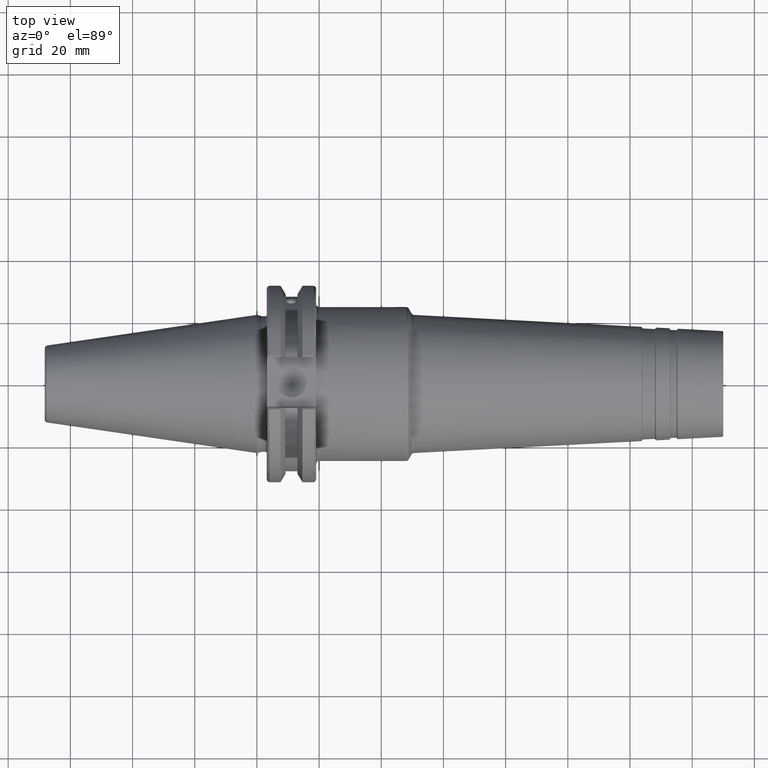
[diagram: clean part render]
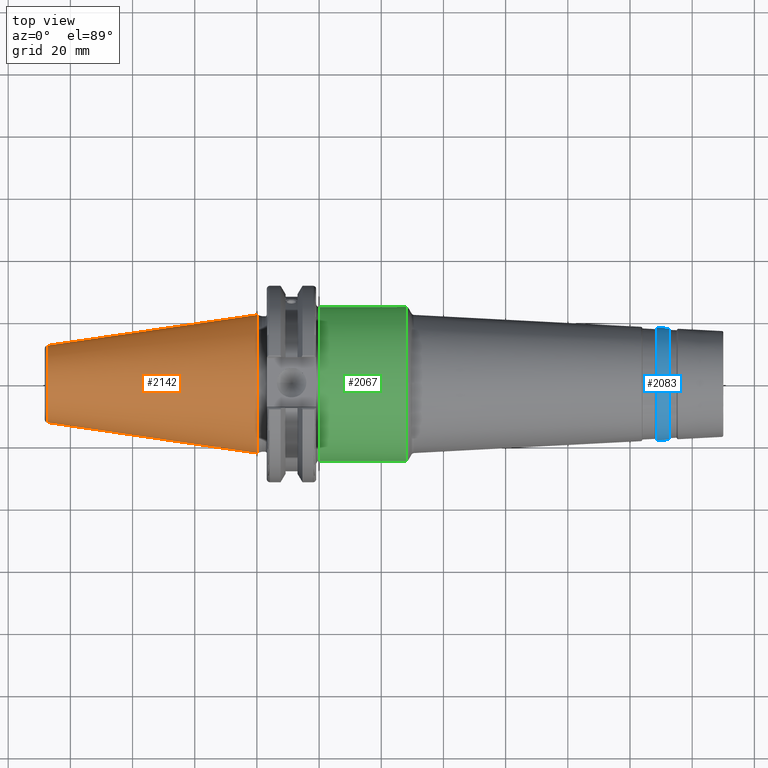
[diagram: same view with three faces highlighted in distinct colors, each labeled with its STEP entity id]
A machine part, top view with three faces highlighted in distinct colors.
Their STEP definitions:

[orange] entity #2142 — the highlighted conical surface has half-angle 8.297 deg.
#119=CONICAL_SURFACE('',#2442,17.2484375,0.144812498238939);
#253=FACE_OUTER_BOUND('',#372,.T.);
#372=EDGE_LOOP('',(#1894,#1895,#1896,#1897,#1898,#1899,#1900));
#482=LINE('',#4138,#581);
#581=VECTOR('',#3081,17.2484375);
#747=CIRCLE('',#2433,12.3966635780937);
#748=CIRCLE('',#2434,12.3966635780937);
#752=CIRCLE('',#2438,12.3966635780937);
#755=CIRCLE('',#2443,22.225);
#756=CIRCLE('',#2444,22.225);
#990=VERTEX_POINT('',#4117);
#991=VERTEX_POINT('',#4118);
#992=VERTEX_POINT('',#4120);
#997=VERTEX_POINT('',#4134);
#998=VERTEX_POINT('',#4135);
#1308=EDGE_CURVE('',#990,#991,#747,.T.);
#1309=EDGE_CURVE('',#991,#992,#748,.T.);
#1313=EDGE_CURVE('',#992,#990,#752,.T.);
#1316=EDGE_CURVE('',#997,#998,#755,.T.);
#1317=EDGE_CURVE('',#998,#997,#756,.T.);
#1318=EDGE_CURVE('',#998,#991,#482,.T.);
#1894=ORIENTED_EDGE('',*,*,#1316,.F.);
#1895=ORIENTED_EDGE('',*,*,#1317,.F.);
#1896=ORIENTED_EDGE('',*,*,#1318,.T.);
#1897=ORIENTED_EDGE('',*,*,#1308,.F.);
#1898=ORIENTED_EDGE('',*,*,#1313,.F.);
#1899=ORIENTED_EDGE('',*,*,#1309,.F.);
#1900=ORIENTED_EDGE('',*,*,#1318,.F.);
#2142=ADVANCED_FACE('',(#253),#119,.T.);
#2433=AXIS2_PLACEMENT_3D('',#4119,#3057,#3058);
#2434=AXIS2_PLACEMENT_3D('',#4121,#3059,#3060);
#2438=AXIS2_PLACEMENT_3D('',#4127,#3067,#3068);
#2442=AXIS2_PLACEMENT_3D('',#4133,#3075,#3076);
#2443=AXIS2_PLACEMENT_3D('',#4136,#3077,#3078);
#2444=AXIS2_PLACEMENT_3D('',#4137,#3079,#3080);
#3057=DIRECTION('center_axis',(-1.,0.,0.));
#3058=DIRECTION('ref_axis',(0.,-1.,3.06161699786838E-17));
#3059=DIRECTION('center_axis',(-1.,0.,0.));
#3060=DIRECTION('ref_axis',(0.,-1.,3.06161699786838E-17));
#3067=DIRECTION('center_axis',(-1.,0.,0.));
#3068=DIRECTION('ref_axis',(0.,-1.,3.06161699786838E-17));
#3075=DIRECTION('center_axis',(1.,0.,0.));
#3076=DIRECTION('ref_axis',(0.,1.,0.));
#3077=DIRECTION('center_axis',(1.,0.,0.));
#3078=DIRECTION('ref_axis',(0.,0.,-1.));
#3079=DIRECTION('center_axis',(1.,0.,0.));
#3080=DIRECTION('ref_axis',(0.,0.,-1.));
#3081=DIRECTION('',(-0.989532981063282,0.144306893071729,1.76724974695192E-17));
#4117=CARTESIAN_POINT('',(-67.3943068930717,12.3966635780937,-3.79538359275475E-15));
#4118=CARTESIAN_POINT('',(-67.3943068930718,-12.3966635780937,-1.5181534371019E-15));
#4119=CARTESIAN_POINT('Origin',(-67.3943068930717,0.,-1.89769179637738E-15));
#4120=CARTESIAN_POINT('',(-67.3943068930717,-1.5181534371019E-15,12.3966635780937));
#4121=CARTESIAN_POINT('Origin',(-67.3943068930717,0.,-1.89769179637738E-15));
#4127=CARTESIAN_POINT('Origin',(-67.3943068930717,0.,-1.89769179637738E-15));
#4133=CARTESIAN_POINT('Origin',(-34.125,0.,0.));
#4134=CARTESIAN_POINT('',(0.,22.225,0.));
#4135=CARTESIAN_POINT('',(0.,-22.225,-2.72177751110499E-15));
#4136=CARTESIAN_POINT('Origin',(0.,0.,0.));
#4137=CARTESIAN_POINT('Origin',(0.,0.,0.));
#4138=CARTESIAN_POINT('',(-34.125,-17.2484375,-2.11232437746682E-15));

[blue] entity #2083 — the highlighted conical surface has half-angle 3 deg.
#111=CONICAL_SURFACE('',#2278,18.0202570867172,0.0523598775598298);
#194=FACE_OUTER_BOUND('',#303,.T.);
#303=EDGE_LOOP('',(#1501,#1502,#1503,#1504,#1505,#1506,#1507,#1508));
#414=LINE('',#3444,#513);
#513=VECTOR('',#2681,18.0202570867172);
#665=CIRCLE('',#2275,17.9166117566925);
#666=CIRCLE('',#2276,17.9166117566925);
#667=CIRCLE('',#2277,17.9166117566925);
#668=CIRCLE('',#2279,18.1239024167419);
#669=CIRCLE('',#2280,18.1239024167419);
#670=CIRCLE('',#2281,18.1239024167419);
#837=VERTEX_POINT('',#3435);
#838=VERTEX_POINT('',#3437);
#839=VERTEX_POINT('',#3439);
#840=VERTEX_POINT('',#3443);
#841=VERTEX_POINT('',#3445);
#842=VERTEX_POINT('',#3447);
#1097=EDGE_CURVE('',#837,#838,#665,.T.);
#1098=EDGE_CURVE('',#838,#839,#666,.T.);
#1099=EDGE_CURVE('',#839,#837,#667,.T.);
#1100=EDGE_CURVE('',#838,#840,#414,.T.);
#1101=EDGE_CURVE('',#841,#840,#668,.T.);
#1102=EDGE_CURVE('',#842,#841,#669,.T.);
#1103=EDGE_CURVE('',#840,#842,#670,.T.);
#1501=ORIENTED_EDGE('',*,*,#1099,.F.);
#1502=ORIENTED_EDGE('',*,*,#1098,.F.);
#1503=ORIENTED_EDGE('',*,*,#1100,.T.);
#1504=ORIENTED_EDGE('',*,*,#1101,.F.);
#1505=ORIENTED_EDGE('',*,*,#1102,.F.);
#1506=ORIENTED_EDGE('',*,*,#1103,.F.);
#1507=ORIENTED_EDGE('',*,*,#1100,.F.);
#1508=ORIENTED_EDGE('',*,*,#1097,.F.);
#2083=ADVANCED_FACE('',(#194),#111,.T.);
#2275=AXIS2_PLACEMENT_3D('',#3438,#2673,#2674);
#2276=AXIS2_PLACEMENT_3D('',#3440,#2675,#2676);
#2277=AXIS2_PLACEMENT_3D('',#3441,#2677,#2678);
#2278=AXIS2_PLACEMENT_3D('',#3442,#2679,#2680);
#2279=AXIS2_PLACEMENT_3D('',#3446,#2682,#2683);
#2280=AXIS2_PLACEMENT_3D('',#3448,#2684,#2685);
#2281=AXIS2_PLACEMENT_3D('',#3449,#2686,#2687);
#2673=DIRECTION('center_axis',(1.,0.,0.));
#2674=DIRECTION('ref_axis',(0.,-1.,3.06161699786838E-17));
#2675=DIRECTION('center_axis',(1.,0.,0.));
#2676=DIRECTION('ref_axis',(0.,-1.,3.06161699786838E-17));
#2677=DIRECTION('center_axis',(1.,0.,0.));
#2678=DIRECTION('ref_axis',(0.,-1.,3.06161699786838E-17));
#2679=DIRECTION('center_axis',(-1.,0.,0.));
#2680=DIRECTION('ref_axis',(0.,1.,0.));
#2681=DIRECTION('',(-0.998629534754574,-0.0523359562429437,-6.4093061293237E-18));
#2682=DIRECTION('center_axis',(-1.,0.,0.));
#2683=DIRECTION('ref_axis',(0.,-1.,3.06161699786838E-17));
#2684=DIRECTION('center_axis',(-1.,0.,0.));
#2685=DIRECTION('ref_axis',(0.,-1.,3.06161699786838E-17));
#2686=DIRECTION('center_axis',(-1.,0.,0.));
#2687=DIRECTION('ref_axis',(0.,-1.,3.06161699786838E-17));
#3435=CARTESIAN_POINT('',(132.510005780972,-2.19415212393993E-15,17.9166117566925));
#3437=CARTESIAN_POINT('',(132.510005780972,-17.9166117566925,-2.19415212393993E-15));
#3438=CARTESIAN_POINT('Origin',(132.510005780972,0.,-2.74269015492491E-15));
#3439=CARTESIAN_POINT('',(132.510005780972,17.9166117566925,-1.09707606196996E-15));
#3440=CARTESIAN_POINT('Origin',(132.510005780972,0.,-2.74269015492491E-15));
#3441=CARTESIAN_POINT('Origin',(132.510005780972,0.,-2.74269015492491E-15));
#3442=CARTESIAN_POINT('Origin',(130.532335071726,0.,0.));
#3443=CARTESIAN_POINT('',(128.55466436248,-18.1239024167419,-2.2195379082722E-15));
#3444=CARTESIAN_POINT('',(130.532335071726,-18.0202570867172,-2.20684501610606E-15));
#3445=CARTESIAN_POINT('',(128.55466436248,18.1239024167419,-5.54884477068049E-15));
#3446=CARTESIAN_POINT('Origin',(128.55466436248,0.,-2.77442238534024E-15));
#3447=CARTESIAN_POINT('',(128.55466436248,-2.2195379082722E-15,18.1239024167419));
#3448=CARTESIAN_POINT('Origin',(128.55466436248,0.,-2.77442238534024E-15));
#3449=CARTESIAN_POINT('Origin',(128.55466436248,0.,-2.77442238534024E-15));

[green] entity #2067 — the highlighted cylindrical surface (bore or boss wall) has radius 24.75 mm, axis along (1, 0, 0).
#144=B_SPLINE_CURVE_WITH_KNOTS('',3,(#3281,#3282,#3283,#3284,#3285,#3286,
#3287,#3288,#3289,#3290,#3291,#3292,#3293,#3294,#3295,#3296,#3297,#3298),
 .UNSPECIFIED.,.F.,.F.,(4,2,2,2,2,2,2,2,4),(-2.48845986202559,-2.17733241913027,
-1.86620497623495,-1.55521745362387,-1.24422993101279,-0.933242408401712,
-0.622254885790633,-0.311127442895316,0.),.UNSPECIFIED.);
#178=FACE_OUTER_BOUND('',#286,.T.);
#286=EDGE_LOOP('',(#1378,#1379,#1380,#1381,#1382,#1383,#1384,#1385));
#406=LINE('',#3311,#505);
#505=VECTOR('',#2523,24.75);
#607=CIRCLE('',#2202,24.75);
#608=CIRCLE('',#2203,24.75);
#609=CIRCLE('',#2204,24.75);
#610=CIRCLE('',#2205,24.75);
#611=CIRCLE('',#2206,24.75);
#783=VERTEX_POINT('',#3279);
#784=VERTEX_POINT('',#3280);
#787=VERTEX_POINT('',#3305);
#788=VERTEX_POINT('',#3306);
#789=VERTEX_POINT('',#3308);
#790=VERTEX_POINT('',#3310);
#1027=EDGE_CURVE('',#783,#784,#144,.T.);
#1031=EDGE_CURVE('',#787,#788,#607,.T.);
#1032=EDGE_CURVE('',#789,#787,#608,.T.);
#1033=EDGE_CURVE('',#789,#790,#406,.T.);
#1034=EDGE_CURVE('',#783,#790,#609,.T.);
#1035=EDGE_CURVE('',#790,#784,#610,.T.);
#1036=EDGE_CURVE('',#788,#789,#611,.T.);
#1378=ORIENTED_EDGE('',*,*,#1031,.F.);
#1379=ORIENTED_EDGE('',*,*,#1032,.F.);
#1380=ORIENTED_EDGE('',*,*,#1033,.T.);
#1381=ORIENTED_EDGE('',*,*,#1034,.F.);
#1382=ORIENTED_EDGE('',*,*,#1027,.T.);
#1383=ORIENTED_EDGE('',*,*,#1035,.F.);
#1384=ORIENTED_EDGE('',*,*,#1033,.F.);
#1385=ORIENTED_EDGE('',*,*,#1036,.F.);
#2036=CYLINDRICAL_SURFACE('',#2201,24.75);
#2067=ADVANCED_FACE('',(#178),#2036,.T.);
#2201=AXIS2_PLACEMENT_3D('',#3304,#2517,#2518);
#2202=AXIS2_PLACEMENT_3D('',#3307,#2519,#2520);
#2203=AXIS2_PLACEMENT_3D('',#3309,#2521,#2522);
#2204=AXIS2_PLACEMENT_3D('',#3312,#2524,#2525);
#2205=AXIS2_PLACEMENT_3D('',#3313,#2526,#2527);
#2206=AXIS2_PLACEMENT_3D('',#3314,#2528,#2529);
#2517=DIRECTION('center_axis',(1.,0.,0.));
#2518=DIRECTION('ref_axis',(0.,1.,0.));
#2519=DIRECTION('center_axis',(1.,0.,0.));
#2520=DIRECTION('ref_axis',(0.,-1.,1.83697019872103E-16));
#2521=DIRECTION('center_axis',(1.,0.,0.));
#2522=DIRECTION('ref_axis',(0.,-1.,1.83697019872103E-16));
#2523=DIRECTION('',(-1.,0.,0.));
#2524=DIRECTION('center_axis',(-1.,0.,0.));
#2525=DIRECTION('ref_axis',(0.,6.12323399573677E-17,1.));
#2526=DIRECTION('center_axis',(-1.,0.,0.));
#2527=DIRECTION('ref_axis',(0.,6.12323399573677E-17,1.));
#2528=DIRECTION('center_axis',(1.,0.,0.));
#2529=DIRECTION('ref_axis',(0.,-1.,1.83697019872103E-16));
#3279=CARTESIAN_POINT('',(20.05,-8.19,-23.3556502799644));
#3280=CARTESIAN_POINT('',(20.05,8.18999999999999,-23.3556502799644));
#3281=CARTESIAN_POINT('Ctrl Pts',(20.05,-8.19,-23.3556502799644));
#3282=CARTESIAN_POINT('Ctrl Pts',(21.0870914763177,-8.19,-23.3556502799644));
#3283=CARTESIAN_POINT('Ctrl Pts',(22.1874172494719,-7.98112852617488,-23.4319820145953));
#3284=CARTESIAN_POINT('Ctrl Pts',(24.2026226557734,-7.14301766428651,-23.7009173446597));
#3285=CARTESIAN_POINT('Ctrl Pts',(25.1182638848105,-6.51414519102515,-23.8889373554493));
#3286=CARTESIAN_POINT('Ctrl Pts',(26.563820070037,-5.06858900579863,-24.2368381566145));
#3287=CARTESIAN_POINT('Ctrl Pts',(27.1929429534371,-4.15281808103606,-24.420258379043));
#3288=CARTESIAN_POINT('Ctrl Pts',(28.0312404144778,-2.13713243178097,-24.6784841969774));
#3289=CARTESIAN_POINT('Ctrl Pts',(28.24,-1.03662507537027,-24.75));
#3290=CARTESIAN_POINT('Ctrl Pts',(28.24,1.03662507537027,-24.75));
#3291=CARTESIAN_POINT('Ctrl Pts',(28.0312404144778,2.13713243178098,-24.6784841969774));
#3292=CARTESIAN_POINT('Ctrl Pts',(27.1929429534371,4.15281808103607,-24.420258379043));
#3293=CARTESIAN_POINT('Ctrl Pts',(26.563820070037,5.06858900579863,-24.2368381566145));
#3294=CARTESIAN_POINT('Ctrl Pts',(25.1182638848105,6.51414519102515,-23.8889373554493));
#3295=CARTESIAN_POINT('Ctrl Pts',(24.2026226557734,7.14301766428652,-23.7009173446597));
#3296=CARTESIAN_POINT('Ctrl Pts',(22.1874172494719,7.98112852617489,-23.4319820145953));
#3297=CARTESIAN_POINT('Ctrl Pts',(21.0870914763177,8.19,-23.3556502799644));
#3298=CARTESIAN_POINT('Ctrl Pts',(20.05,8.19,-23.3556502799644));
#3304=CARTESIAN_POINT('Origin',(33.8006499807249,0.,0.));
#3305=CARTESIAN_POINT('',(47.9739496922602,24.75,-1.51550041394485E-15));
#3306=CARTESIAN_POINT('',(47.9739496922602,-3.0310008278897E-15,24.75));
#3307=CARTESIAN_POINT('Origin',(47.9739496922602,0.,0.));
#3308=CARTESIAN_POINT('',(47.9739496922602,-24.75,-3.0310008278897E-15));
#3309=CARTESIAN_POINT('Origin',(47.9739496922602,0.,0.));
#3310=CARTESIAN_POINT('',(20.05,-24.75,-3.0310008278897E-15));
#3311=CARTESIAN_POINT('',(33.8006499807249,-24.75,-3.0310008278897E-15));
#3312=CARTESIAN_POINT('Origin',(20.05,0.,0.));
#3313=CARTESIAN_POINT('Origin',(20.05,0.,0.));
#3314=CARTESIAN_POINT('Origin',(47.9739496922602,0.,0.));